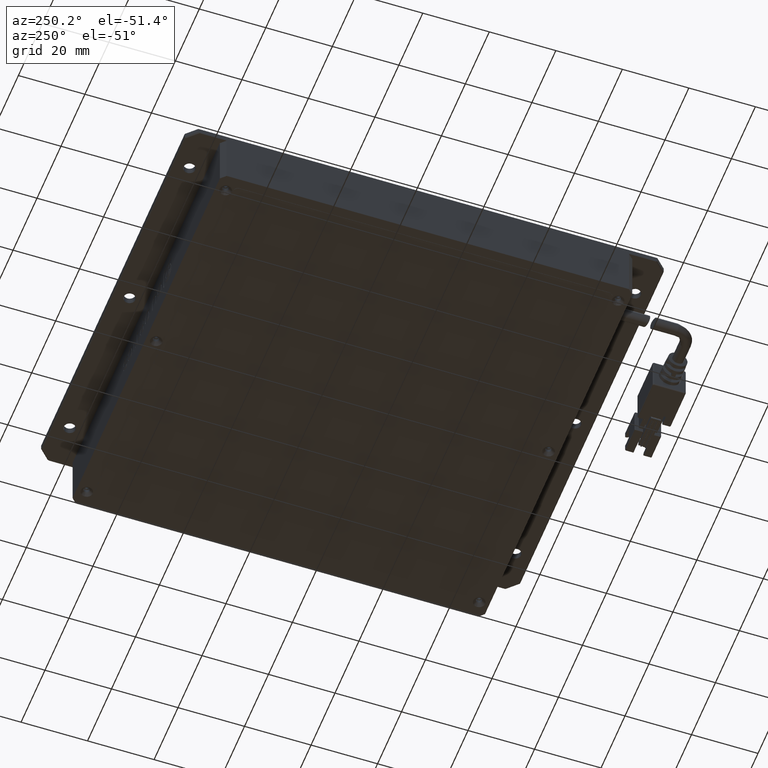
[diagram: clean part render]
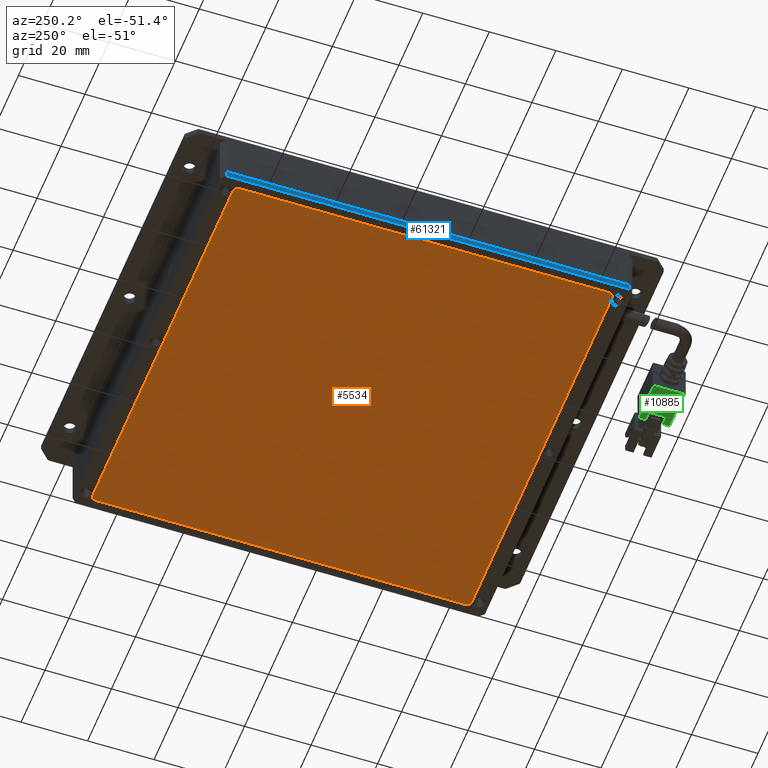
[diagram: same view with three faces highlighted in distinct colors, each labeled with its STEP entity id]
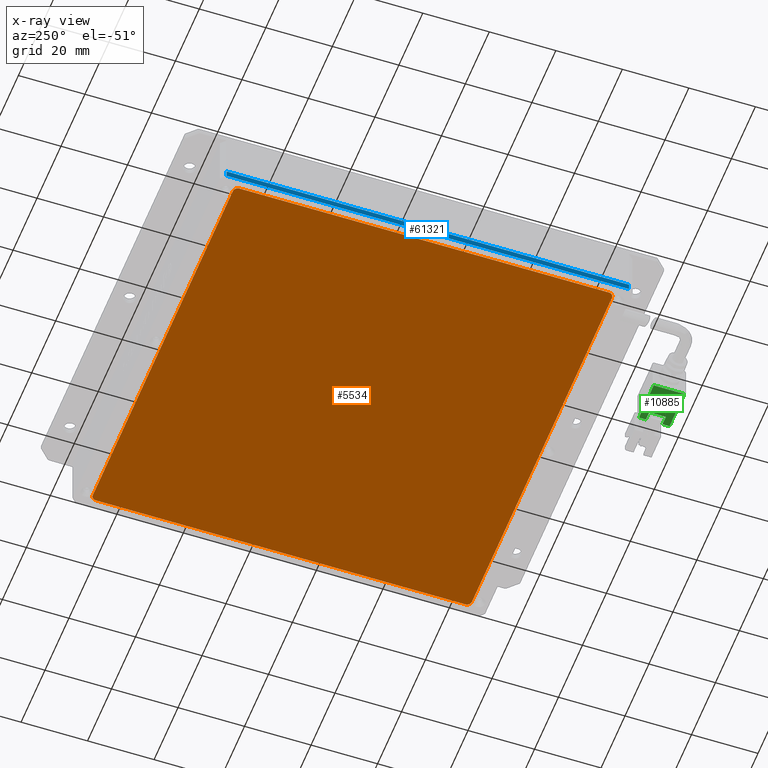
[diagram: x-ray of the same camera — body ghosted, the three highlighted faces saturated]
A machine part, auxiliary view with three faces highlighted in distinct colors.
The next image is the same camera in x-ray (body ghosted, the three faces saturated) — at least one of them is partly hidden behind the body in this view.
Their STEP definitions:

[orange] entity #5534 — the highlighted planar face has unit normal (0, 0, -1).
#1211 = AXIS2_PLACEMENT_3D ( 'NONE', #9069, #63689, #16903 ) ;
#3014 = CARTESIAN_POINT ( 'NONE',  ( -60.35509736540662100, -44.61034746086291100, -2.100000000016370500 ) ) ;
#3311 = CARTESIAN_POINT ( 'NONE',  ( -60.35509736540662100, 66.38965253913713100, -2.100000000016370500 ) ) ;
#5534 = ADVANCED_FACE ( 'NONE', ( #62460 ), #16692, .T. ) ;
#6142 = LINE ( 'NONE', #3311, #47638 ) ;
#6436 = CARTESIAN_POINT ( 'NONE',  ( 58.14490263459337900, 66.38965253913711700, -2.100000000016370500 ) ) ;
#8141 = EDGE_CURVE ( 'NONE', #14511, #45048, #57058, .T. ) ;
#9069 = CARTESIAN_POINT ( 'NONE',  ( 58.14490263459335000, -44.61034746086289000, -2.100000000016370500 ) ) ;
#9569 = CARTESIAN_POINT ( 'NONE',  ( -58.85509736540662100, -46.11034746086291100, -2.100000000016370500 ) ) ;
#12900 = ORIENTED_EDGE ( 'NONE', *, *, #42769, .T. ) ;
#14258 = DIRECTION ( 'NONE',  ( -1.000000000000000000, 0.0000000000000000000, 0.0000000000000000000 ) ) ;
#14511 = VERTEX_POINT ( 'NONE', #40623 ) ;
#15720 = VECTOR ( 'NONE', #21733, 1000.000000000000000 ) ;
#16572 = VERTEX_POINT ( 'NONE', #3014 ) ;
#16692 = PLANE ( 'NONE',  #69089 ) ;
#16903 = DIRECTION ( 'NONE',  ( -1.000000000000000000, 0.0000000000000000000, 0.0000000000000000000 ) ) ;
#19499 = CARTESIAN_POINT ( 'NONE',  ( -58.85509736540662100, 67.88965253913713100, -2.100000000016370500 ) ) ;
#20699 = ORIENTED_EDGE ( 'NONE', *, *, #76729, .T. ) ;
#20709 = VERTEX_POINT ( 'NONE', #79005 ) ;
#21141 = CARTESIAN_POINT ( 'NONE',  ( 59.64490263459335000, -44.61034746086288300, -2.100000000016370500 ) ) ;
#21726 = VERTEX_POINT ( 'NONE', #19499 ) ;
#21733 = DIRECTION ( 'NONE',  ( -1.000000000000000000, -1.186135710069612200E-016, -0.0000000000000000000 ) ) ;
#22656 = DIRECTION ( 'NONE',  ( 0.0000000000000000000, 0.0000000000000000000, -1.000000000000000000 ) ) ;
#23838 = CIRCLE ( 'NONE', #99801, 1.499999999999994400 ) ;
#24878 = CARTESIAN_POINT ( 'NONE',  ( -58.85509736540662100, -44.61034746086291100, -2.100000000016370500 ) ) ;
#25793 = DIRECTION ( 'NONE',  ( -0.0000000000000000000, 1.000000000000000000, -0.0000000000000000000 ) ) ;
#27277 = CARTESIAN_POINT ( 'NONE',  ( -58.85509736540662100, 66.38965253913713100, -2.100000000016370500 ) ) ;
#32758 = DIRECTION ( 'NONE',  ( -1.000000000000000000, 0.0000000000000000000, -0.0000000000000000000 ) ) ;
#35099 = DIRECTION ( 'NONE',  ( -1.000000000000000000, 0.0000000000000000000, 0.0000000000000000000 ) ) ;
#36066 = ORIENTED_EDGE ( 'NONE', *, *, #63262, .T. ) ;
#36808 = DIRECTION ( 'NONE',  ( -1.250251153857158300E-016, -1.000000000000000000, -0.0000000000000000000 ) ) ;
#38443 = VERTEX_POINT ( 'NONE', #9569 ) ;
#39933 = DIRECTION ( 'NONE',  ( 1.000000000000000000, -1.186135710069611900E-016, -0.0000000000000000000 ) ) ;
#40623 = CARTESIAN_POINT ( 'NONE',  ( 58.14490263459337900, 67.88965253913711700, -2.100000000016370500 ) ) ;
#42769 = EDGE_CURVE ( 'NONE', #89606, #21726, #73312, .T. ) ;
#43040 = CARTESIAN_POINT ( 'NONE',  ( 58.14490263459335000, -46.11034746086289700, -2.100000000016370500 ) ) ;
#44380 = AXIS2_PLACEMENT_3D ( 'NONE', #27277, #81901, #35099 ) ;
#44994 = ORIENTED_EDGE ( 'NONE', *, *, #48792, .T. ) ;
#45048 = VERTEX_POINT ( 'NONE', #81331 ) ;
#45828 = EDGE_CURVE ( 'NONE', #45048, #20709, #91556, .T. ) ;
#47638 = VECTOR ( 'NONE', #25793, 1000.000000000000000 ) ;
#48792 = EDGE_CURVE ( 'NONE', #16572, #89606, #6142, .T. ) ;
#50816 = EDGE_LOOP ( 'NONE', ( #89230, #44994, #12900, #89279, #63381, #92937, #20699, #36066 ) ) ;
#57058 = CIRCLE ( 'NONE', #66851, 1.499999999999994400 ) ;
#57238 = LINE ( 'NONE', #68467, #15720 ) ;
#61041 = DIRECTION ( 'NONE',  ( 0.0000000000000000000, 0.0000000000000000000, -1.000000000000000000 ) ) ;
#62460 = FACE_OUTER_BOUND ( 'NONE', #50816, .T. ) ;
#63262 = EDGE_CURVE ( 'NONE', #75768, #38443, #57238, .T. ) ;
#63381 = ORIENTED_EDGE ( 'NONE', *, *, #8141, .T. ) ;
#63689 = DIRECTION ( 'NONE',  ( 0.0000000000000000000, 0.0000000000000000000, -1.000000000000000000 ) ) ;
#64214 = CIRCLE ( 'NONE', #1211, 1.500000000000001300 ) ;
#66851 = AXIS2_PLACEMENT_3D ( 'NONE', #6436, #61041, #14258 ) ;
#68467 = CARTESIAN_POINT ( 'NONE',  ( -58.85509736540662100, -46.11034746086291100, -2.100000000016370500 ) ) ;
#69089 = AXIS2_PLACEMENT_3D ( 'NONE', #24878, #79515, #32758 ) ;
#69437 = CARTESIAN_POINT ( 'NONE',  ( -58.85509736540662100, -44.61034746086291100, -2.100000000016370500 ) ) ;
#70761 = VECTOR ( 'NONE', #36808, 1000.000000000000000 ) ;
#73312 = CIRCLE ( 'NONE', #44380, 1.499999999999994400 ) ;
#75768 = VERTEX_POINT ( 'NONE', #43040 ) ;
#76051 = LINE ( 'NONE', #86734, #94423 ) ;
#76729 = EDGE_CURVE ( 'NONE', #20709, #75768, #64214, .T. ) ;
#77276 = DIRECTION ( 'NONE',  ( -1.000000000000000000, 0.0000000000000000000, 0.0000000000000000000 ) ) ;
#79005 = CARTESIAN_POINT ( 'NONE',  ( 59.64490263459335000, -44.61034746086288300, -2.100000000016370500 ) ) ;
#79515 = DIRECTION ( 'NONE',  ( 0.0000000000000000000, 0.0000000000000000000, -1.000000000000000000 ) ) ;
#80627 = CARTESIAN_POINT ( 'NONE',  ( -60.35509736540662100, 66.38965253913713100, -2.100000000016370500 ) ) ;
#81331 = CARTESIAN_POINT ( 'NONE',  ( 59.64490263459336500, 66.38965253913711700, -2.100000000016370500 ) ) ;
#81901 = DIRECTION ( 'NONE',  ( 0.0000000000000000000, 0.0000000000000000000, -1.000000000000000000 ) ) ;
#86734 = CARTESIAN_POINT ( 'NONE',  ( 58.14490263459337900, 67.88965253913711700, -2.100000000016370500 ) ) ;
#89230 = ORIENTED_EDGE ( 'NONE', *, *, #96010, .T. ) ;
#89279 = ORIENTED_EDGE ( 'NONE', *, *, #96683, .T. ) ;
#89606 = VERTEX_POINT ( 'NONE', #80627 ) ;
#91556 = LINE ( 'NONE', #21141, #70761 ) ;
#92937 = ORIENTED_EDGE ( 'NONE', *, *, #45828, .T. ) ;
#94423 = VECTOR ( 'NONE', #39933, 1000.000000000000000 ) ;
#96010 = EDGE_CURVE ( 'NONE', #38443, #16572, #23838, .T. ) ;
#96683 = EDGE_CURVE ( 'NONE', #21726, #14511, #76051, .T. ) ;
#99801 = AXIS2_PLACEMENT_3D ( 'NONE', #69437, #22656, #77276 ) ;

[blue] entity #61321 — the highlighted planar face has unit normal (1, -0, 0).
#1818 = VECTOR ( 'NONE', #27486, 1000.000000000000000 ) ;
#4580 = VERTEX_POINT ( 'NONE', #20198 ) ;
#5455 = DIRECTION ( 'NONE',  ( -0.0000000000000000000, -0.0000000000000000000, 1.000000000000000000 ) ) ;
#13766 = VECTOR ( 'NONE', #5455, 1000.000000000000000 ) ;
#13837 = FACE_OUTER_BOUND ( 'NONE', #74329, .T. ) ;
#15562 = EDGE_CURVE ( 'NONE', #70877, #57624, #100181, .T. ) ;
#15567 = ORIENTED_EDGE ( 'NONE', *, *, #15562, .F. ) ;
#17916 = EDGE_CURVE ( 'NONE', #70877, #74186, #55326, .T. ) ;
#20198 = CARTESIAN_POINT ( 'NONE',  ( -63.35509736540663500, 71.38965253913708900, -1.637058544279312900E-011 ) ) ;
#22847 = LINE ( 'NONE', #47329, #41097 ) ;
#24348 = CARTESIAN_POINT ( 'NONE',  ( -63.35509736540663500, 71.38965253913708900, -2.000000000016370500 ) ) ;
#26813 = CARTESIAN_POINT ( 'NONE',  ( -63.35509736540666400, -51.11034746086286900, -2.000000000016370500 ) ) ;
#27486 = DIRECTION ( 'NONE',  ( -0.0000000000000000000, -0.0000000000000000000, 1.000000000000000000 ) ) ;
#34647 = DIRECTION ( 'NONE',  ( 0.0000000000000000000, 0.0000000000000000000, -1.000000000000000000 ) ) ;
#41097 = VECTOR ( 'NONE', #86277, 1000.000000000000000 ) ;
#42159 = PLANE ( 'NONE',  #91025 ) ;
#43304 = LINE ( 'NONE', #90004, #1818 ) ;
#46921 = CARTESIAN_POINT ( 'NONE',  ( -63.35509736540666400, -51.11034746086286900, -2.000000000016370500 ) ) ;
#47329 = CARTESIAN_POINT ( 'NONE',  ( -63.35509736540663500, 72.88965253913711700, -1.637058544279312900E-011 ) ) ;
#50687 = CARTESIAN_POINT ( 'NONE',  ( -63.35509736540666400, -49.61034746086287600, -2.000000000016370500 ) ) ;
#54775 = DIRECTION ( 'NONE',  ( 2.220446049250313100E-016, 1.000000000000000000, 0.0000000000000000000 ) ) ;
#55326 = LINE ( 'NONE', #90823, #13766 ) ;
#57624 = VERTEX_POINT ( 'NONE', #24348 ) ;
#58512 = VECTOR ( 'NONE', #54775, 1000.000000000000000 ) ;
#61321 = ADVANCED_FACE ( 'NONE', ( #13837 ), #42159, .F. ) ;
#70641 = EDGE_CURVE ( 'NONE', #4580, #74186, #22847, .T. ) ;
#70877 = VERTEX_POINT ( 'NONE', #50687 ) ;
#73167 = CARTESIAN_POINT ( 'NONE',  ( -63.35509736540666400, -49.61034746086285500, -1.637036860235863100E-011 ) ) ;
#73689 = ORIENTED_EDGE ( 'NONE', *, *, #77993, .F. ) ;
#74186 = VERTEX_POINT ( 'NONE', #73167 ) ;
#74329 = EDGE_LOOP ( 'NONE', ( #73689, #15567, #78011, #81143 ) ) ;
#77993 = EDGE_CURVE ( 'NONE', #57624, #4580, #43304, .T. ) ;
#78011 = ORIENTED_EDGE ( 'NONE', *, *, #17916, .T. ) ;
#81143 = ORIENTED_EDGE ( 'NONE', *, *, #70641, .F. ) ;
#81444 = DIRECTION ( 'NONE',  ( 1.000000000000000000, -2.220446049250313100E-016, 0.0000000000000000000 ) ) ;
#86277 = DIRECTION ( 'NONE',  ( -2.220446049250313100E-016, -1.000000000000000000, -0.0000000000000000000 ) ) ;
#90004 = CARTESIAN_POINT ( 'NONE',  ( -63.35509736540663500, 71.38965253913708900, -2.000000000016370500 ) ) ;
#90823 = CARTESIAN_POINT ( 'NONE',  ( -63.35509736540666400, -49.61034746086286900, -2.000000000016370500 ) ) ;
#91025 = AXIS2_PLACEMENT_3D ( 'NONE', #26813, #81444, #34647 ) ;
#100181 = LINE ( 'NONE', #46921, #58512 ) ;

[green] entity #10885 — the highlighted planar face has unit normal (-0, -0, 1).
#70 = LINE ( 'NONE', #26897, #18364 ) ;
#2277 = CARTESIAN_POINT ( 'NONE',  ( -25.95509736540662600, -70.11034746086289700, 7.299999999983639600 ) ) ;
#3156 = VERTEX_POINT ( 'NONE', #4634 ) ;
#3374 = VERTEX_POINT ( 'NONE', #58621 ) ;
#4634 = CARTESIAN_POINT ( 'NONE',  ( -25.95509736540662300, -79.71034746086289100, 7.299999999983638700 ) ) ;
#5716 = EDGE_CURVE ( 'NONE', #62122, #24386, #70, .T. ) ;
#6552 = ORIENTED_EDGE ( 'NONE', *, *, #14630, .F. ) ;
#6860 = VECTOR ( 'NONE', #49327, 1000.000000000000000 ) ;
#8470 = EDGE_CURVE ( 'NONE', #49285, #3156, #30035, .T. ) ;
#9019 = CARTESIAN_POINT ( 'NONE',  ( -13.35509736540662100, -72.61034746086289700, 7.299999999983640500 ) ) ;
#10097 = DIRECTION ( 'NONE',  ( 6.162975822039154700E-033, 1.000000000000000000, 1.232595164407830900E-032 ) ) ;
#10337 = CARTESIAN_POINT ( 'NONE',  ( -25.95509736540662300, -70.51034746086288900, 7.299999999983640500 ) ) ;
#10499 = EDGE_CURVE ( 'NONE', #24386, #91633, #20693, .T. ) ;
#10885 = ADVANCED_FACE ( 'NONE', ( #54181 ), #76204, .F. ) ;
#12840 = LINE ( 'NONE', #33307, #54409 ) ;
#14024 = DIRECTION ( 'NONE',  ( -5.345529420184392100E-049, -1.232595164407830900E-032, 1.000000000000000000 ) ) ;
#14630 = EDGE_CURVE ( 'NONE', #84971, #49285, #82227, .T. ) ;
#15084 = CARTESIAN_POINT ( 'NONE',  ( -16.35509736540662500, -77.61034746086289700, 7.299999999983639600 ) ) ;
#17651 = CARTESIAN_POINT ( 'NONE',  ( -16.35509736540662500, -72.61034746086289700, 7.299999999983640500 ) ) ;
#18239 = ORIENTED_EDGE ( 'NONE', *, *, #10499, .F. ) ;
#18293 = CARTESIAN_POINT ( 'NONE',  ( -13.55509736540662400, -77.61034746086289700, 7.299999999983639600 ) ) ;
#18364 = VECTOR ( 'NONE', #19417, 1000.000000000000000 ) ;
#19417 = DIRECTION ( 'NONE',  ( 6.162975822039154700E-033, 1.000000000000000000, 1.232595164407830900E-032 ) ) ;
#19979 = DIRECTION ( 'NONE',  ( 6.162975822039154700E-033, 1.000000000000000000, 1.232595164407830900E-032 ) ) ;
#20693 = LINE ( 'NONE', #9019, #62244 ) ;
#21592 = ORIENTED_EDGE ( 'NONE', *, *, #84447, .F. ) ;
#24006 = ORIENTED_EDGE ( 'NONE', *, *, #77812, .F. ) ;
#24152 = ORIENTED_EDGE ( 'NONE', *, *, #8470, .F. ) ;
#24386 = VERTEX_POINT ( 'NONE', #17651 ) ;
#26897 = CARTESIAN_POINT ( 'NONE',  ( -16.35509736540662500, -70.11034746086289700, 7.299999999983639600 ) ) ;
#27821 = CARTESIAN_POINT ( 'NONE',  ( -13.55509736540662400, -70.11034746086289700, 7.299999999983639600 ) ) ;
#28359 = ORIENTED_EDGE ( 'NONE', *, *, #5716, .F. ) ;
#28520 = ORIENTED_EDGE ( 'NONE', *, *, #33322, .F. ) ;
#30035 = LINE ( 'NONE', #2277, #6860 ) ;
#33307 = CARTESIAN_POINT ( 'NONE',  ( -13.35509736540662100, -79.71034746086289100, 7.299999999983638700 ) ) ;
#33322 = EDGE_CURVE ( 'NONE', #91633, #84971, #99097, .T. ) ;
#33492 = EDGE_CURVE ( 'NONE', #3374, #46214, #68533, .T. ) ;
#41124 = CARTESIAN_POINT ( 'NONE',  ( -13.55509736540662400, -70.11034746086289700, 7.299999999983639600 ) ) ;
#41205 = EDGE_LOOP ( 'NONE', ( #28520, #18239, #28359, #21592, #99502, #24006, #24152, #6552 ) ) ;
#45936 = CARTESIAN_POINT ( 'NONE',  ( -13.55509736540662400, -72.61034746086289700, 7.299999999983640500 ) ) ;
#46214 = VERTEX_POINT ( 'NONE', #18293 ) ;
#49285 = VERTEX_POINT ( 'NONE', #10337 ) ;
#49327 = DIRECTION ( 'NONE',  ( -6.162975822039154700E-033, -1.000000000000000000, -1.232595164407830900E-032 ) ) ;
#53400 = CARTESIAN_POINT ( 'NONE',  ( -13.55509736540662400, -70.51034746086288900, 7.299999999983640500 ) ) ;
#54181 = FACE_OUTER_BOUND ( 'NONE', #41205, .T. ) ;
#54409 = VECTOR ( 'NONE', #87985, 1000.000000000000000 ) ;
#54512 = DIRECTION ( 'NONE',  ( -1.000000000000000000, 6.162975822039154700E-033, -5.345529420184391300E-049 ) ) ;
#54639 = LINE ( 'NONE', #78068, #96255 ) ;
#58621 = CARTESIAN_POINT ( 'NONE',  ( -13.55509736540662400, -79.71034746086289100, 7.299999999983638700 ) ) ;
#60830 = CARTESIAN_POINT ( 'NONE',  ( -13.35509736540662100, -70.11034746086289700, 7.299999999983639600 ) ) ;
#61333 = AXIS2_PLACEMENT_3D ( 'NONE', #60830, #14024, #68677 ) ;
#61479 = VECTOR ( 'NONE', #96695, 1000.000000000000000 ) ;
#62122 = VERTEX_POINT ( 'NONE', #15084 ) ;
#62244 = VECTOR ( 'NONE', #63646, 1000.000000000000000 ) ;
#63646 = DIRECTION ( 'NONE',  ( 1.000000000000000000, -6.162975822039154700E-033, 5.345529420184391300E-049 ) ) ;
#68533 = LINE ( 'NONE', #27821, #86864 ) ;
#68677 = DIRECTION ( 'NONE',  ( -6.162975822039154700E-033, -1.000000000000000000, -1.232595164407830900E-032 ) ) ;
#76204 = PLANE ( 'NONE',  #61333 ) ;
#77812 = EDGE_CURVE ( 'NONE', #3156, #3374, #12840, .T. ) ;
#78068 = CARTESIAN_POINT ( 'NONE',  ( -13.35509736540662100, -77.61034746086289700, 7.299999999983639600 ) ) ;
#78209 = VECTOR ( 'NONE', #10097, 1000.000000000000000 ) ;
#80898 = CARTESIAN_POINT ( 'NONE',  ( -13.35509736540662100, -70.51034746086288900, 7.299999999983640500 ) ) ;
#82227 = LINE ( 'NONE', #80898, #61479 ) ;
#84447 = EDGE_CURVE ( 'NONE', #46214, #62122, #54639, .T. ) ;
#84971 = VERTEX_POINT ( 'NONE', #53400 ) ;
#86864 = VECTOR ( 'NONE', #19979, 1000.000000000000000 ) ;
#87985 = DIRECTION ( 'NONE',  ( 1.000000000000000000, -6.162975822039154700E-033, 5.345529420184391300E-049 ) ) ;
#91633 = VERTEX_POINT ( 'NONE', #45936 ) ;
#96255 = VECTOR ( 'NONE', #54512, 1000.000000000000000 ) ;
#96695 = DIRECTION ( 'NONE',  ( -1.000000000000000000, 6.162975822039154700E-033, -5.345529420184391300E-049 ) ) ;
#99097 = LINE ( 'NONE', #41124, #78209 ) ;
#99502 = ORIENTED_EDGE ( 'NONE', *, *, #33492, .F. ) ;